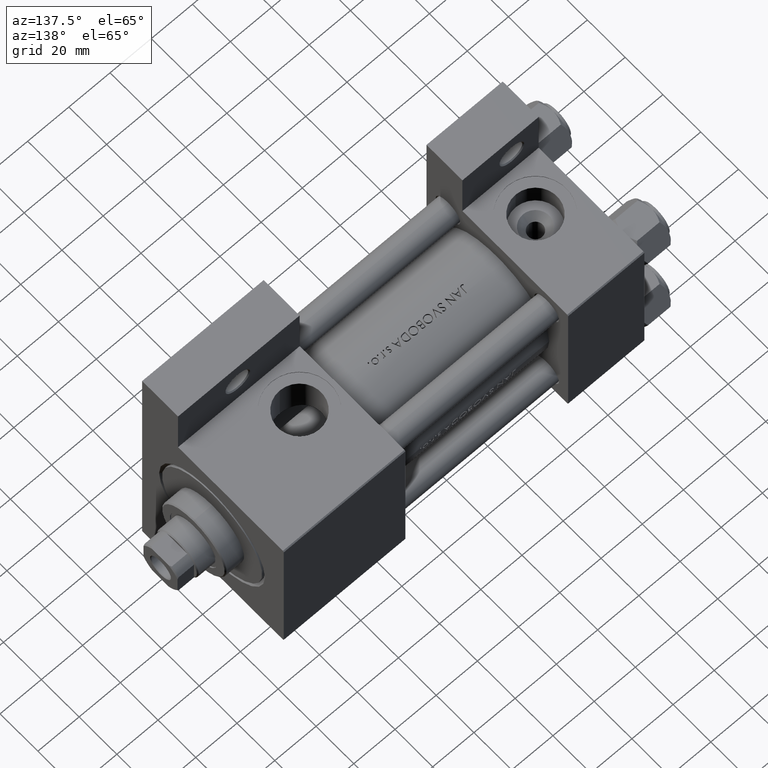
[diagram: clean part render]
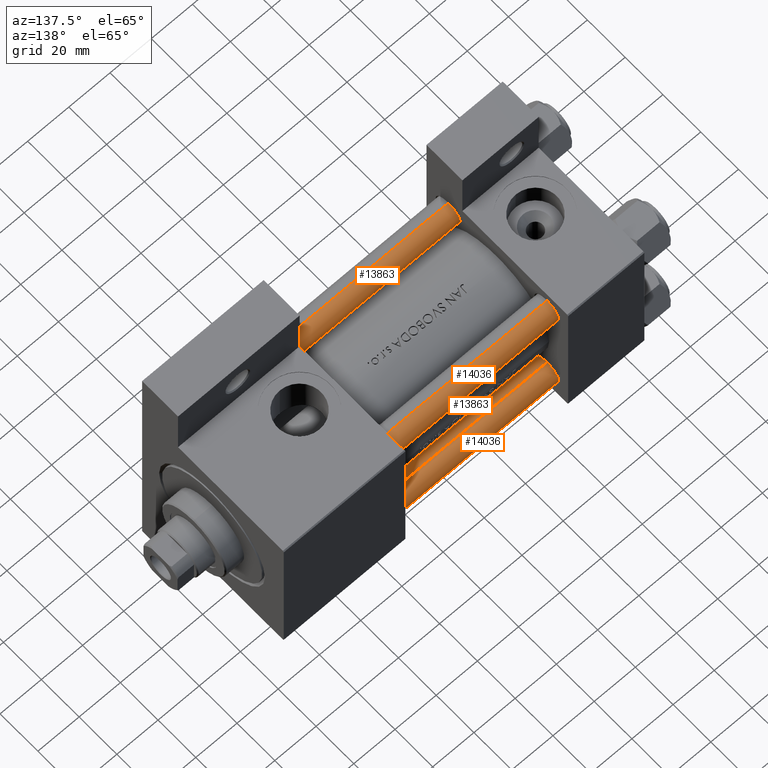
[diagram: same view with one multi-face feature highlighted, each face labeled with its STEP entity id]
A machine part, auxiliary view. The highlighted faces form ONE feature: a constant-radius fillet chain: 4 tangent blend faces with common blend radius 6 mm. The faces share edges in the B-rep.
Their STEP definitions:
[1] entity #14036 (Cylinder):
#853 = LINE ( 'NONE', #31730, #11981 ) ;
#3086 = CARTESIAN_POINT ( 'NONE',  ( 6.000000000000000888, 7.347880794884120722E-16, 0.5000000000000004441 ) ) ;
#4342 = CARTESIAN_POINT ( 'NONE',  ( -6.000000000000000888, 0.000000000000000000, 145.0000000000000000 ) ) ;
#4836 = LINE ( 'NONE', #4342, #28818 ) ;
#5007 = ORIENTED_EDGE ( 'NONE', *, *, #19522, .T. ) ;
#5548 = CIRCLE ( 'NONE', #9524, 6.000000000000000888 ) ;
#8761 = EDGE_CURVE ( 'NONE', #48853, #41022, #853, .T. ) ;
#9524 = AXIS2_PLACEMENT_3D ( 'NONE', #36973, #22275, #26493 ) ;
#10176 = FACE_OUTER_BOUND ( 'NONE', #42825, .T. ) ;
#10676 = CARTESIAN_POINT ( 'NONE',  ( 0.000000000000000000, 0.000000000000000000, 145.0000000000000000 ) ) ;
#11691 = ORIENTED_EDGE ( 'NONE', *, *, #37549, .F. ) ;
#11981 = VECTOR ( 'NONE', #12822, 1000.000000000000000 ) ;
#12822 = DIRECTION ( 'NONE',  ( -0.000000000000000000, -0.000000000000000000, -1.000000000000000000 ) ) ;
#13926 = CYLINDRICAL_SURFACE ( 'NONE', #21719, 6.000000000000000888 ) ;
#14036 = ADVANCED_FACE ( 'NONE', ( #10176 ), #13926, .T. ) ;
#18407 = ORIENTED_EDGE ( 'NONE', *, *, #8761, .T. ) ;
#19320 = DIRECTION ( 'NONE',  ( 1.000000000000000000, 0.000000000000000000, 0.000000000000000000 ) ) ;
#19522 = EDGE_CURVE ( 'NONE', #41022, #47975, #23621, .T. ) ;
#21719 = AXIS2_PLACEMENT_3D ( 'NONE', #10676, #45032, #25375 ) ;
#22275 = DIRECTION ( 'NONE',  ( 0.000000000000000000, 0.000000000000000000, -1.000000000000000000 ) ) ;
#23621 = CIRCLE ( 'NONE', #48231, 6.000000000000000888 ) ;
#25375 = DIRECTION ( 'NONE',  ( -1.000000000000000000, 0.000000000000000000, 0.000000000000000000 ) ) ;
#26493 = DIRECTION ( 'NONE',  ( 1.000000000000000000, 0.000000000000000000, 0.000000000000000000 ) ) ;
#26537 = CARTESIAN_POINT ( 'NONE',  ( 0.000000000000000000, 0.000000000000000000, 0.5000000000000004441 ) ) ;
#26693 = EDGE_CURVE ( 'NONE', #30484, #48853, #5548, .T. ) ;
#28818 = VECTOR ( 'NONE', #46162, 1000.000000000000000 ) ;
#30484 = VERTEX_POINT ( 'NONE', #43114 ) ;
#31730 = CARTESIAN_POINT ( 'NONE',  ( 6.000000000000000888, 7.347880794884120722E-16, 145.0000000000000000 ) ) ;
#34664 = CARTESIAN_POINT ( 'NONE',  ( 6.000000000000000888, 7.347880794884120722E-16, 144.5000000000000000 ) ) ;
#35532 = ORIENTED_EDGE ( 'NONE', *, *, #26693, .T. ) ;
#36973 = CARTESIAN_POINT ( 'NONE',  ( 0.000000000000000000, 0.000000000000000000, 144.5000000000000000 ) ) ;
#37549 = EDGE_CURVE ( 'NONE', #30484, #47975, #4836, .T. ) ;
#38585 = CARTESIAN_POINT ( 'NONE',  ( -6.000000000000000888, 0.000000000000000000, 0.5000000000000004441 ) ) ;
#41022 = VERTEX_POINT ( 'NONE', #3086 ) ;
#42825 = EDGE_LOOP ( 'NONE', ( #35532, #18407, #5007, #11691 ) ) ;
#43114 = CARTESIAN_POINT ( 'NONE',  ( -6.000000000000000888, 0.000000000000000000, 144.5000000000000000 ) ) ;
#45032 = DIRECTION ( 'NONE',  ( -0.000000000000000000, -0.000000000000000000, -1.000000000000000000 ) ) ;
#45440 = DIRECTION ( 'NONE',  ( -0.000000000000000000, -0.000000000000000000, 1.000000000000000000 ) ) ;
#46162 = DIRECTION ( 'NONE',  ( -0.000000000000000000, -0.000000000000000000, -1.000000000000000000 ) ) ;
#47975 = VERTEX_POINT ( 'NONE', #38585 ) ;
#48231 = AXIS2_PLACEMENT_3D ( 'NONE', #26537, #45440, #19320 ) ;
#48853 = VERTEX_POINT ( 'NONE', #34664 ) ;
[2] entity #13863 (Cylinder):
#853 = LINE ( 'NONE', #31730, #11981 ) ;
#1238 = FACE_OUTER_BOUND ( 'NONE', #25032, .T. ) ;
#1461 = AXIS2_PLACEMENT_3D ( 'NONE', #38325, #30838, #7195 ) ;
#2228 = CIRCLE ( 'NONE', #47548, 6.000000000000000888 ) ;
#2590 = AXIS2_PLACEMENT_3D ( 'NONE', #19705, #34889, #15956 ) ;
#3086 = CARTESIAN_POINT ( 'NONE',  ( 6.000000000000000888, 7.347880794884120722E-16, 0.5000000000000004441 ) ) ;
#4342 = CARTESIAN_POINT ( 'NONE',  ( -6.000000000000000888, 0.000000000000000000, 145.0000000000000000 ) ) ;
#4378 = EDGE_CURVE ( 'NONE', #48853, #30484, #42047, .T. ) ;
#4499 = CYLINDRICAL_SURFACE ( 'NONE', #2590, 6.000000000000000888 ) ;
#4836 = LINE ( 'NONE', #4342, #28818 ) ;
#7195 = DIRECTION ( 'NONE',  ( 1.000000000000000000, 0.000000000000000000, 0.000000000000000000 ) ) ;
#8761 = EDGE_CURVE ( 'NONE', #48853, #41022, #853, .T. ) ;
#9781 = ORIENTED_EDGE ( 'NONE', *, *, #22608, .T. ) ;
#11981 = VECTOR ( 'NONE', #12822, 1000.000000000000000 ) ;
#12822 = DIRECTION ( 'NONE',  ( -0.000000000000000000, -0.000000000000000000, -1.000000000000000000 ) ) ;
#13060 = DIRECTION ( 'NONE',  ( 1.000000000000000000, 0.000000000000000000, 0.000000000000000000 ) ) ;
#13863 = ADVANCED_FACE ( 'NONE', ( #1238 ), #4499, .T. ) ;
#15956 = DIRECTION ( 'NONE',  ( -1.000000000000000000, 0.000000000000000000, 0.000000000000000000 ) ) ;
#17366 = ORIENTED_EDGE ( 'NONE', *, *, #4378, .T. ) ;
#19705 = CARTESIAN_POINT ( 'NONE',  ( 0.000000000000000000, 0.000000000000000000, 145.0000000000000000 ) ) ;
#22608 = EDGE_CURVE ( 'NONE', #47975, #41022, #2228, .T. ) ;
#24186 = ORIENTED_EDGE ( 'NONE', *, *, #37549, .T. ) ;
#25032 = EDGE_LOOP ( 'NONE', ( #43900, #17366, #24186, #9781 ) ) ;
#28818 = VECTOR ( 'NONE', #46162, 1000.000000000000000 ) ;
#30484 = VERTEX_POINT ( 'NONE', #43114 ) ;
#30838 = DIRECTION ( 'NONE',  ( 0.000000000000000000, 0.000000000000000000, -1.000000000000000000 ) ) ;
#31730 = CARTESIAN_POINT ( 'NONE',  ( 6.000000000000000888, 7.347880794884120722E-16, 145.0000000000000000 ) ) ;
#34664 = CARTESIAN_POINT ( 'NONE',  ( 6.000000000000000888, 7.347880794884120722E-16, 144.5000000000000000 ) ) ;
#34889 = DIRECTION ( 'NONE',  ( -0.000000000000000000, -0.000000000000000000, -1.000000000000000000 ) ) ;
#35981 = DIRECTION ( 'NONE',  ( -0.000000000000000000, -0.000000000000000000, 1.000000000000000000 ) ) ;
#37549 = EDGE_CURVE ( 'NONE', #30484, #47975, #4836, .T. ) ;
#38325 = CARTESIAN_POINT ( 'NONE',  ( 0.000000000000000000, 0.000000000000000000, 144.5000000000000000 ) ) ;
#38585 = CARTESIAN_POINT ( 'NONE',  ( -6.000000000000000888, 0.000000000000000000, 0.5000000000000004441 ) ) ;
#39470 = CARTESIAN_POINT ( 'NONE',  ( 0.000000000000000000, 0.000000000000000000, 0.5000000000000004441 ) ) ;
#41022 = VERTEX_POINT ( 'NONE', #3086 ) ;
#42047 = CIRCLE ( 'NONE', #1461, 6.000000000000000888 ) ;
#43114 = CARTESIAN_POINT ( 'NONE',  ( -6.000000000000000888, 0.000000000000000000, 144.5000000000000000 ) ) ;
#43900 = ORIENTED_EDGE ( 'NONE', *, *, #8761, .F. ) ;
#46162 = DIRECTION ( 'NONE',  ( -0.000000000000000000, -0.000000000000000000, -1.000000000000000000 ) ) ;
#47548 = AXIS2_PLACEMENT_3D ( 'NONE', #39470, #35981, #13060 ) ;
#47975 = VERTEX_POINT ( 'NONE', #38585 ) ;
#48853 = VERTEX_POINT ( 'NONE', #34664 ) ;
[3] entity #14036 (Cylinder):
#853 = LINE ( 'NONE', #31730, #11981 ) ;
#3086 = CARTESIAN_POINT ( 'NONE',  ( 6.000000000000000888, 7.347880794884120722E-16, 0.5000000000000004441 ) ) ;
#4342 = CARTESIAN_POINT ( 'NONE',  ( -6.000000000000000888, 0.000000000000000000, 145.0000000000000000 ) ) ;
#4836 = LINE ( 'NONE', #4342, #28818 ) ;
#5007 = ORIENTED_EDGE ( 'NONE', *, *, #19522, .T. ) ;
#5548 = CIRCLE ( 'NONE', #9524, 6.000000000000000888 ) ;
#8761 = EDGE_CURVE ( 'NONE', #48853, #41022, #853, .T. ) ;
#9524 = AXIS2_PLACEMENT_3D ( 'NONE', #36973, #22275, #26493 ) ;
#10176 = FACE_OUTER_BOUND ( 'NONE', #42825, .T. ) ;
#10676 = CARTESIAN_POINT ( 'NONE',  ( 0.000000000000000000, 0.000000000000000000, 145.0000000000000000 ) ) ;
#11691 = ORIENTED_EDGE ( 'NONE', *, *, #37549, .F. ) ;
#11981 = VECTOR ( 'NONE', #12822, 1000.000000000000000 ) ;
#12822 = DIRECTION ( 'NONE',  ( -0.000000000000000000, -0.000000000000000000, -1.000000000000000000 ) ) ;
#13926 = CYLINDRICAL_SURFACE ( 'NONE', #21719, 6.000000000000000888 ) ;
#14036 = ADVANCED_FACE ( 'NONE', ( #10176 ), #13926, .T. ) ;
#18407 = ORIENTED_EDGE ( 'NONE', *, *, #8761, .T. ) ;
#19320 = DIRECTION ( 'NONE',  ( 1.000000000000000000, 0.000000000000000000, 0.000000000000000000 ) ) ;
#19522 = EDGE_CURVE ( 'NONE', #41022, #47975, #23621, .T. ) ;
#21719 = AXIS2_PLACEMENT_3D ( 'NONE', #10676, #45032, #25375 ) ;
#22275 = DIRECTION ( 'NONE',  ( 0.000000000000000000, 0.000000000000000000, -1.000000000000000000 ) ) ;
#23621 = CIRCLE ( 'NONE', #48231, 6.000000000000000888 ) ;
#25375 = DIRECTION ( 'NONE',  ( -1.000000000000000000, 0.000000000000000000, 0.000000000000000000 ) ) ;
#26493 = DIRECTION ( 'NONE',  ( 1.000000000000000000, 0.000000000000000000, 0.000000000000000000 ) ) ;
#26537 = CARTESIAN_POINT ( 'NONE',  ( 0.000000000000000000, 0.000000000000000000, 0.5000000000000004441 ) ) ;
#26693 = EDGE_CURVE ( 'NONE', #30484, #48853, #5548, .T. ) ;
#28818 = VECTOR ( 'NONE', #46162, 1000.000000000000000 ) ;
#30484 = VERTEX_POINT ( 'NONE', #43114 ) ;
#31730 = CARTESIAN_POINT ( 'NONE',  ( 6.000000000000000888, 7.347880794884120722E-16, 145.0000000000000000 ) ) ;
#34664 = CARTESIAN_POINT ( 'NONE',  ( 6.000000000000000888, 7.347880794884120722E-16, 144.5000000000000000 ) ) ;
#35532 = ORIENTED_EDGE ( 'NONE', *, *, #26693, .T. ) ;
#36973 = CARTESIAN_POINT ( 'NONE',  ( 0.000000000000000000, 0.000000000000000000, 144.5000000000000000 ) ) ;
#37549 = EDGE_CURVE ( 'NONE', #30484, #47975, #4836, .T. ) ;
#38585 = CARTESIAN_POINT ( 'NONE',  ( -6.000000000000000888, 0.000000000000000000, 0.5000000000000004441 ) ) ;
#41022 = VERTEX_POINT ( 'NONE', #3086 ) ;
#42825 = EDGE_LOOP ( 'NONE', ( #35532, #18407, #5007, #11691 ) ) ;
#43114 = CARTESIAN_POINT ( 'NONE',  ( -6.000000000000000888, 0.000000000000000000, 144.5000000000000000 ) ) ;
#45032 = DIRECTION ( 'NONE',  ( -0.000000000000000000, -0.000000000000000000, -1.000000000000000000 ) ) ;
#45440 = DIRECTION ( 'NONE',  ( -0.000000000000000000, -0.000000000000000000, 1.000000000000000000 ) ) ;
#46162 = DIRECTION ( 'NONE',  ( -0.000000000000000000, -0.000000000000000000, -1.000000000000000000 ) ) ;
#47975 = VERTEX_POINT ( 'NONE', #38585 ) ;
#48231 = AXIS2_PLACEMENT_3D ( 'NONE', #26537, #45440, #19320 ) ;
#48853 = VERTEX_POINT ( 'NONE', #34664 ) ;
[4] entity #13863 (Cylinder):
#853 = LINE ( 'NONE', #31730, #11981 ) ;
#1238 = FACE_OUTER_BOUND ( 'NONE', #25032, .T. ) ;
#1461 = AXIS2_PLACEMENT_3D ( 'NONE', #38325, #30838, #7195 ) ;
#2228 = CIRCLE ( 'NONE', #47548, 6.000000000000000888 ) ;
#2590 = AXIS2_PLACEMENT_3D ( 'NONE', #19705, #34889, #15956 ) ;
#3086 = CARTESIAN_POINT ( 'NONE',  ( 6.000000000000000888, 7.347880794884120722E-16, 0.5000000000000004441 ) ) ;
#4342 = CARTESIAN_POINT ( 'NONE',  ( -6.000000000000000888, 0.000000000000000000, 145.0000000000000000 ) ) ;
#4378 = EDGE_CURVE ( 'NONE', #48853, #30484, #42047, .T. ) ;
#4499 = CYLINDRICAL_SURFACE ( 'NONE', #2590, 6.000000000000000888 ) ;
#4836 = LINE ( 'NONE', #4342, #28818 ) ;
#7195 = DIRECTION ( 'NONE',  ( 1.000000000000000000, 0.000000000000000000, 0.000000000000000000 ) ) ;
#8761 = EDGE_CURVE ( 'NONE', #48853, #41022, #853, .T. ) ;
#9781 = ORIENTED_EDGE ( 'NONE', *, *, #22608, .T. ) ;
#11981 = VECTOR ( 'NONE', #12822, 1000.000000000000000 ) ;
#12822 = DIRECTION ( 'NONE',  ( -0.000000000000000000, -0.000000000000000000, -1.000000000000000000 ) ) ;
#13060 = DIRECTION ( 'NONE',  ( 1.000000000000000000, 0.000000000000000000, 0.000000000000000000 ) ) ;
#13863 = ADVANCED_FACE ( 'NONE', ( #1238 ), #4499, .T. ) ;
#15956 = DIRECTION ( 'NONE',  ( -1.000000000000000000, 0.000000000000000000, 0.000000000000000000 ) ) ;
#17366 = ORIENTED_EDGE ( 'NONE', *, *, #4378, .T. ) ;
#19705 = CARTESIAN_POINT ( 'NONE',  ( 0.000000000000000000, 0.000000000000000000, 145.0000000000000000 ) ) ;
#22608 = EDGE_CURVE ( 'NONE', #47975, #41022, #2228, .T. ) ;
#24186 = ORIENTED_EDGE ( 'NONE', *, *, #37549, .T. ) ;
#25032 = EDGE_LOOP ( 'NONE', ( #43900, #17366, #24186, #9781 ) ) ;
#28818 = VECTOR ( 'NONE', #46162, 1000.000000000000000 ) ;
#30484 = VERTEX_POINT ( 'NONE', #43114 ) ;
#30838 = DIRECTION ( 'NONE',  ( 0.000000000000000000, 0.000000000000000000, -1.000000000000000000 ) ) ;
#31730 = CARTESIAN_POINT ( 'NONE',  ( 6.000000000000000888, 7.347880794884120722E-16, 145.0000000000000000 ) ) ;
#34664 = CARTESIAN_POINT ( 'NONE',  ( 6.000000000000000888, 7.347880794884120722E-16, 144.5000000000000000 ) ) ;
#34889 = DIRECTION ( 'NONE',  ( -0.000000000000000000, -0.000000000000000000, -1.000000000000000000 ) ) ;
#35981 = DIRECTION ( 'NONE',  ( -0.000000000000000000, -0.000000000000000000, 1.000000000000000000 ) ) ;
#37549 = EDGE_CURVE ( 'NONE', #30484, #47975, #4836, .T. ) ;
#38325 = CARTESIAN_POINT ( 'NONE',  ( 0.000000000000000000, 0.000000000000000000, 144.5000000000000000 ) ) ;
#38585 = CARTESIAN_POINT ( 'NONE',  ( -6.000000000000000888, 0.000000000000000000, 0.5000000000000004441 ) ) ;
#39470 = CARTESIAN_POINT ( 'NONE',  ( 0.000000000000000000, 0.000000000000000000, 0.5000000000000004441 ) ) ;
#41022 = VERTEX_POINT ( 'NONE', #3086 ) ;
#42047 = CIRCLE ( 'NONE', #1461, 6.000000000000000888 ) ;
#43114 = CARTESIAN_POINT ( 'NONE',  ( -6.000000000000000888, 0.000000000000000000, 144.5000000000000000 ) ) ;
#43900 = ORIENTED_EDGE ( 'NONE', *, *, #8761, .F. ) ;
#46162 = DIRECTION ( 'NONE',  ( -0.000000000000000000, -0.000000000000000000, -1.000000000000000000 ) ) ;
#47548 = AXIS2_PLACEMENT_3D ( 'NONE', #39470, #35981, #13060 ) ;
#47975 = VERTEX_POINT ( 'NONE', #38585 ) ;
#48853 = VERTEX_POINT ( 'NONE', #34664 ) ;